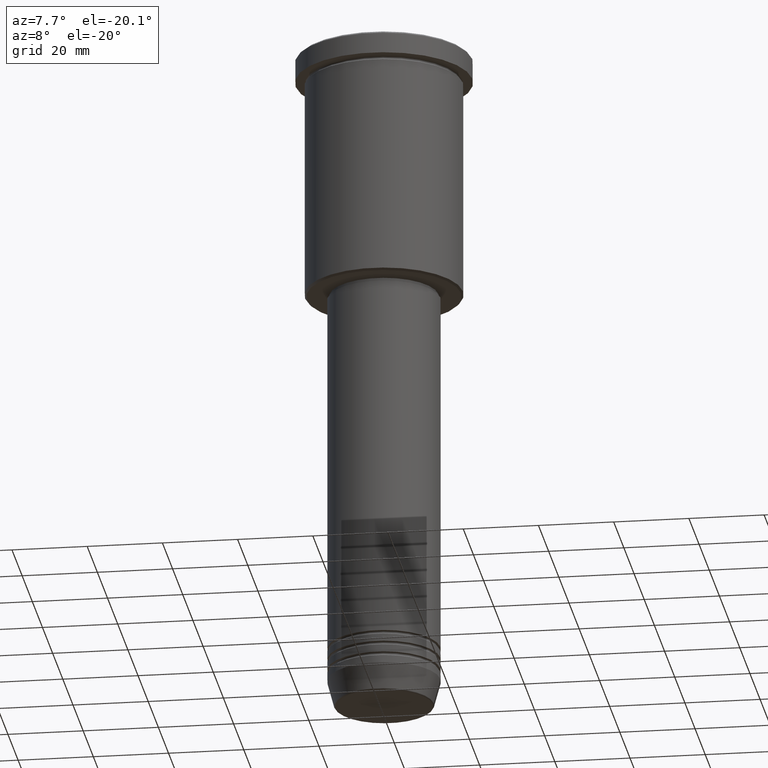
[diagram: clean part render]
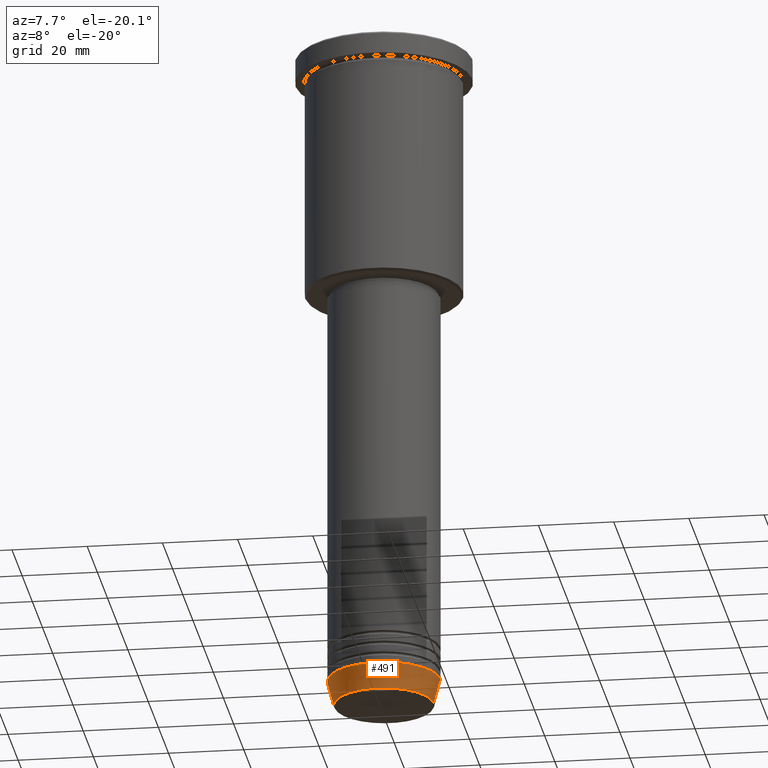
[diagram: same view with one face highlighted and labeled with its STEP entity id]
A machine part, auxiliary view. The second image highlights one B-rep face of the part: STEP entity #491.
In plain terms, the highlighted conical surface has half-angle 15 deg.
Its self-contained STEP definition (entity closure, byte-faithful):
#8 = DIRECTION ( 'NONE',  ( 1.000000000000000000, 0.000000000000000000, 0.000000000000000000 ) ) ;
#23 = ORIENTED_EDGE ( 'NONE', *, *, #957, .T. ) ;
#65 = ORIENTED_EDGE ( 'NONE', *, *, #1025, .T. ) ;
#86 = CARTESIAN_POINT ( 'NONE',  ( 0.000000000000000000, 0.000000000000000000, -174.0000000000000284 ) ) ;
#92 = DIRECTION ( 'NONE',  ( 1.000000000000000000, 0.000000000000000000, 0.000000000000000000 ) ) ;
#101 = LINE ( 'NONE', #389, #1067 ) ;
#199 = CIRCLE ( 'NONE', #388, 13.22365507213720370 ) ;
#240 = VERTEX_POINT ( 'NONE', #1046 ) ;
#290 = EDGE_CURVE ( 'NONE', #240, #743, #542, .T. ) ;
#312 = VERTEX_POINT ( 'NONE', #817 ) ;
#364 = CARTESIAN_POINT ( 'NONE',  ( 0.000000000000000000, 0.000000000000000000, -174.0000000000000284 ) ) ;
#388 = AXIS2_PLACEMENT_3D ( 'NONE', #469, #834, #8 ) ;
#389 = CARTESIAN_POINT ( 'NONE',  ( 15.00000000000000000, 0.000000000000000000, -174.0000000000000284 ) ) ;
#423 = CONICAL_SURFACE ( 'NONE', #503, 15.00000000000000000, 0.2617993877991496299 ) ;
#431 = ORIENTED_EDGE ( 'NONE', *, *, #930, .F. ) ;
#450 = CARTESIAN_POINT ( 'NONE',  ( -15.00000000000000000, 1.836970198721029589E-15, -174.0000000000000284 ) ) ;
#456 = FACE_OUTER_BOUND ( 'NONE', #1114, .T. ) ;
#469 = CARTESIAN_POINT ( 'NONE',  ( 0.000000000000000000, 0.000000000000000000, -180.6294095225512422 ) ) ;
#491 = ADVANCED_FACE ( 'NONE', ( #456 ), #423, .T. ) ;
#503 = AXIS2_PLACEMENT_3D ( 'NONE', #364, #821, #92 ) ;
#518 = CIRCLE ( 'NONE', #970, 15.00000000000000000 ) ;
#542 = LINE ( 'NONE', #450, #1005 ) ;
#587 = ORIENTED_EDGE ( 'NONE', *, *, #290, .F. ) ;
#704 = DIRECTION ( 'NONE',  ( -0.2588190451025209615, 3.169619151431767406E-17, 0.9659258262890682012 ) ) ;
#743 = VERTEX_POINT ( 'NONE', #761 ) ;
#756 = DIRECTION ( 'NONE',  ( -0.000000000000000000, -0.000000000000000000, 1.000000000000000000 ) ) ;
#761 = CARTESIAN_POINT ( 'NONE',  ( -15.00000000000000000, 1.836970198721029589E-15, -174.0000000000000284 ) ) ;
#780 = VERTEX_POINT ( 'NONE', #801 ) ;
#801 = CARTESIAN_POINT ( 'NONE',  ( 15.00000000000000000, 0.000000000000000000, -174.0000000000000284 ) ) ;
#817 = CARTESIAN_POINT ( 'NONE',  ( 13.22365507213720370, 0.000000000000000000, -180.6294095225512422 ) ) ;
#821 = DIRECTION ( 'NONE',  ( -0.000000000000000000, -0.000000000000000000, 1.000000000000000000 ) ) ;
#834 = DIRECTION ( 'NONE',  ( -0.000000000000000000, -0.000000000000000000, 1.000000000000000000 ) ) ;
#904 = DIRECTION ( 'NONE',  ( 1.000000000000000000, 0.000000000000000000, 0.000000000000000000 ) ) ;
#928 = DIRECTION ( 'NONE',  ( 0.2588190451025209615, 0.000000000000000000, 0.9659258262890682012 ) ) ;
#930 = EDGE_CURVE ( 'NONE', #743, #780, #518, .T. ) ;
#957 = EDGE_CURVE ( 'NONE', #312, #780, #101, .T. ) ;
#970 = AXIS2_PLACEMENT_3D ( 'NONE', #86, #756, #904 ) ;
#1005 = VECTOR ( 'NONE', #704, 1000.000000000000000 ) ;
#1025 = EDGE_CURVE ( 'NONE', #240, #312, #199, .T. ) ;
#1046 = CARTESIAN_POINT ( 'NONE',  ( -13.22365507213720370, 1.728200442216589175E-15, -180.6294095225512422 ) ) ;
#1067 = VECTOR ( 'NONE', #928, 1000.000000000000000 ) ;
#1114 = EDGE_LOOP ( 'NONE', ( #587, #65, #23, #431 ) ) ;